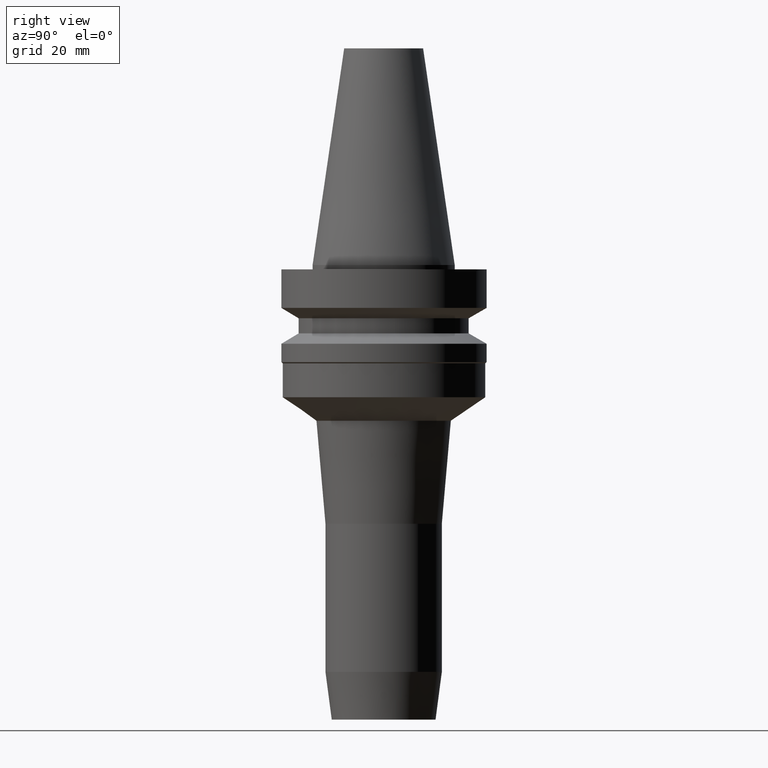
[diagram: clean part render]
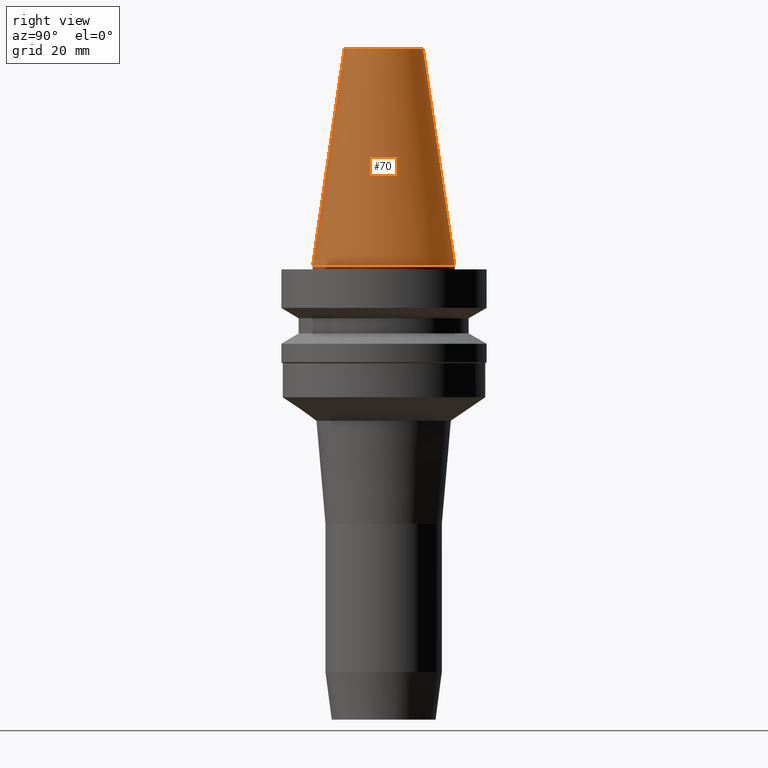
[diagram: same view with one face highlighted and labeled with its STEP entity id]
A machine part, right view. The second image highlights one B-rep face of the part: STEP entity #70.
In plain terms, the highlighted conical surface has half-angle 8.297 deg.
Its self-contained STEP definition (entity closure, byte-faithful):
#56=EDGE_CURVE('Unnamed[1]',#153,#153,#154,.T.);
#70=ADVANCED_FACE('Unnamed[1]',(#174,#175),#176,.T.);
#124=EDGE_CURVE('Unnamed[1]',#259,#259,#260,.T.);
#153=VERTEX_POINT('',#286);
#154=CIRCLE('',#287,8.81650000198669);
#174=FACE_BOUND('',#313,.T.);
#175=FACE_BOUND('',#314,.T.);
#176=CONICAL_SURFACE('',#315,12.3457500009933,0.144815870013618);
#259=VERTEX_POINT('',#418);
#260=CIRCLE('',#419,15.875);
#286=CARTESIAN_POINT('',(-2.96364525393659E-015,8.81650000198669,48.4));
#287=AXIS2_PLACEMENT_3D('',#442,#443,#444);
#313=EDGE_LOOP('',(#464));
#314=EDGE_LOOP('',(#465));
#315=AXIS2_PLACEMENT_3D('',#466,#467,#468);
#418=CARTESIAN_POINT('',(-1.95674482349743E-031,15.875,1.94412679364642E-015));
#419=AXIS2_PLACEMENT_3D('',#559,#560,#561);
#442=CARTESIAN_POINT('',(-2.96364525393659E-015,-5.92729050787319E-015,48.4));
#443=DIRECTION('',(6.12323399573677E-017,1.22464679914735E-016,-1.0));
#444=DIRECTION('',(-1.23259516440783E-032,1.0,1.22464679914735E-016));
#464=ORIENTED_EDGE('',*,*,#124,.F.);
#465=ORIENTED_EDGE('',*,*,#56,.T.);
#466=CARTESIAN_POINT('',(-1.4818226269683E-015,-2.96364525393659E-015,24.2));
#467=DIRECTION('',(6.12323399573677E-017,1.22464679914735E-016,-1.0));
#468=DIRECTION('',(-1.23259516440783E-032,1.0,1.22464679914735E-016));
#559=CARTESIAN_POINT('',(0.0,0.0,0.0));
#560=DIRECTION('',(6.12323399573677E-017,1.22464679914735E-016,-1.0));
#561=DIRECTION('',(-1.23259516440783E-032,1.0,1.22464679914735E-016));